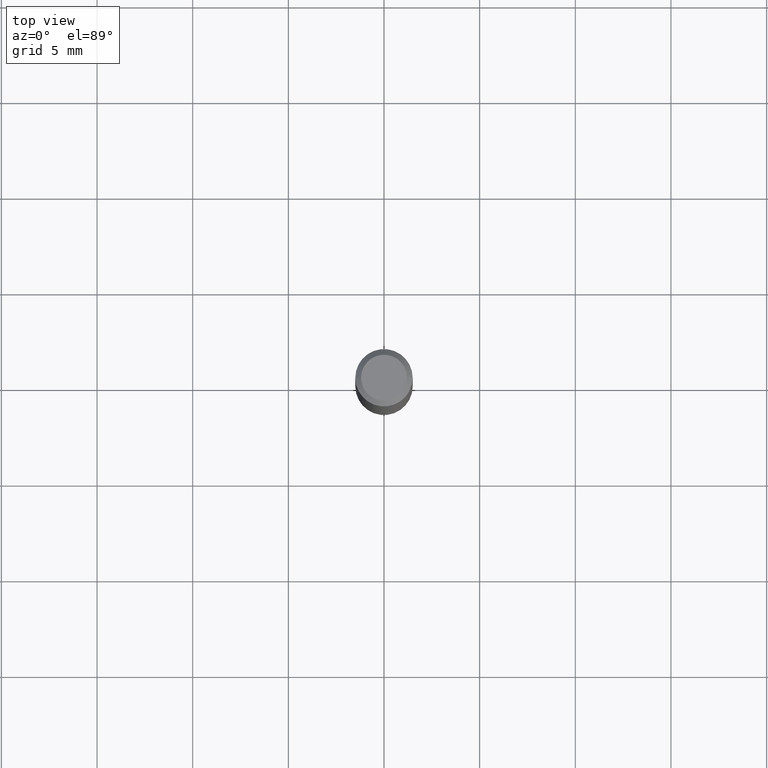
[diagram: clean part render]
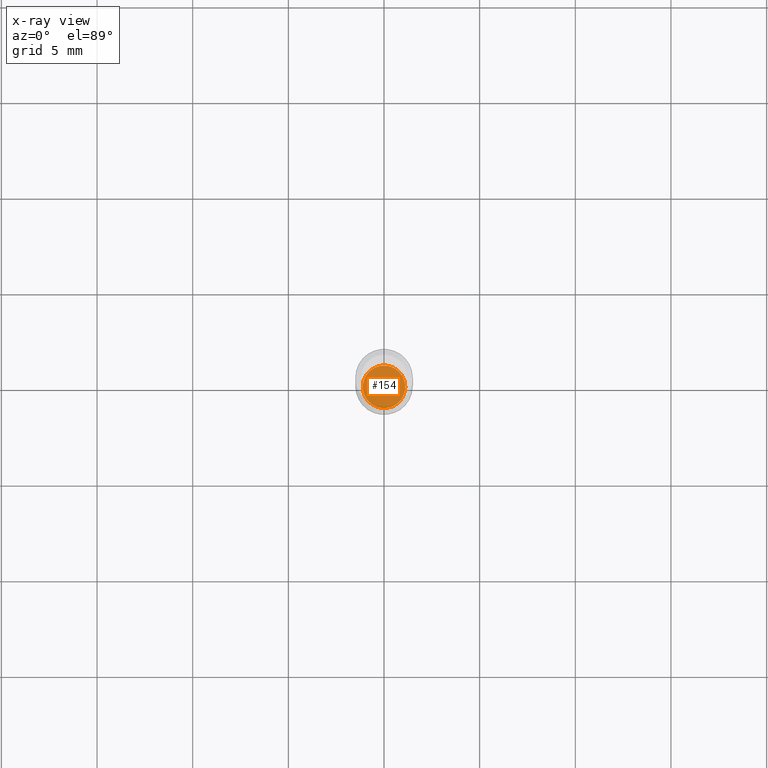
[diagram: x-ray — body ghosted, one internal face saturated and labeled with its STEP entity id]
A machine part, top view, then the same camera in x-ray: the body is ghosted and one INTERNAL B-rep face — a face not visible from any outside direction — is saturated and labeled: STEP entity #154.
In plain terms, the highlighted planar face has unit normal (-0, 0, 1).
Its self-contained STEP definition (entity closure, byte-faithful):
#33 = AXIS2_PLACEMENT_3D ( 'NONE', #363, #168, #318 ) ;
#37 = ORIENTED_EDGE ( 'NONE', *, *, #378, .F. ) ;
#59 = ORIENTED_EDGE ( 'NONE', *, *, #213, .F. ) ;
#61 = EDGE_LOOP ( 'NONE', ( #37, #59 ) ) ;
#79 = DIRECTION ( 'NONE',  ( -2.438088387897960049E-29, 3.491481338843145188E-15, 1.000000000000000000 ) ) ;
#86 = DIRECTION ( 'NONE',  ( 1.000000000000000000, -6.982962677686269077E-15, 0.000000000000000000 ) ) ;
#91 = DIRECTION ( 'NONE',  ( -2.445468806185136597E-29, 3.491481338843145583E-15, 1.000000000000000000 ) ) ;
#97 = CIRCLE ( 'NONE', #145, 0.04379999999999999866 ) ;
#103 = VERTEX_POINT ( 'NONE', #339 ) ;
#123 = CARTESIAN_POINT ( 'NONE',  ( -0.04379999999999999866, -3.507559379926787651E-15, -1.094499999999999806 ) ) ;
#138 = VERTEX_POINT ( 'NONE', #123 ) ;
#145 = AXIS2_PLACEMENT_3D ( 'NONE', #431, #91, #86 ) ;
#154 = ADVANCED_FACE ( 'NONE', ( #161 ), #355, .F. ) ;
#161 = FACE_OUTER_BOUND ( 'NONE', #61, .T. ) ;
#168 = DIRECTION ( 'NONE',  ( -2.445468806185136597E-29, 3.491481338843145583E-15, 1.000000000000000000 ) ) ;
#213 = EDGE_CURVE ( 'NONE', #138, #103, #97, .T. ) ;
#233 = DIRECTION ( 'NONE',  ( 1.000000000000000000, -6.982962677686265922E-15, 4.876176775795935793E-29 ) ) ;
#318 = DIRECTION ( 'NONE',  ( 1.000000000000000000, -6.982962677686269077E-15, 0.000000000000000000 ) ) ;
#339 = CARTESIAN_POINT ( 'NONE',  ( 0.04379999999999999866, -4.127280090646481243E-15, -1.094499999999999806 ) ) ;
#355 = PLANE ( 'NONE',  #423 ) ;
#363 = CARTESIAN_POINT ( 'NONE',  ( 2.676565608369631794E-29, -3.821426325363822773E-15, -1.094499999999999806 ) ) ;
#378 = EDGE_CURVE ( 'NONE', #103, #138, #446, .T. ) ;
#423 = AXIS2_PLACEMENT_3D ( 'NONE', #429, #79, #233 ) ;
#429 = CARTESIAN_POINT ( 'NONE',  ( 2.676565608369631794E-29, -3.821426325363822773E-15, -1.094499999999999806 ) ) ;
#431 = CARTESIAN_POINT ( 'NONE',  ( 2.676565608369631794E-29, -3.821426325363822773E-15, -1.094499999999999806 ) ) ;
#446 = CIRCLE ( 'NONE', #33, 0.04379999999999999866 ) ;